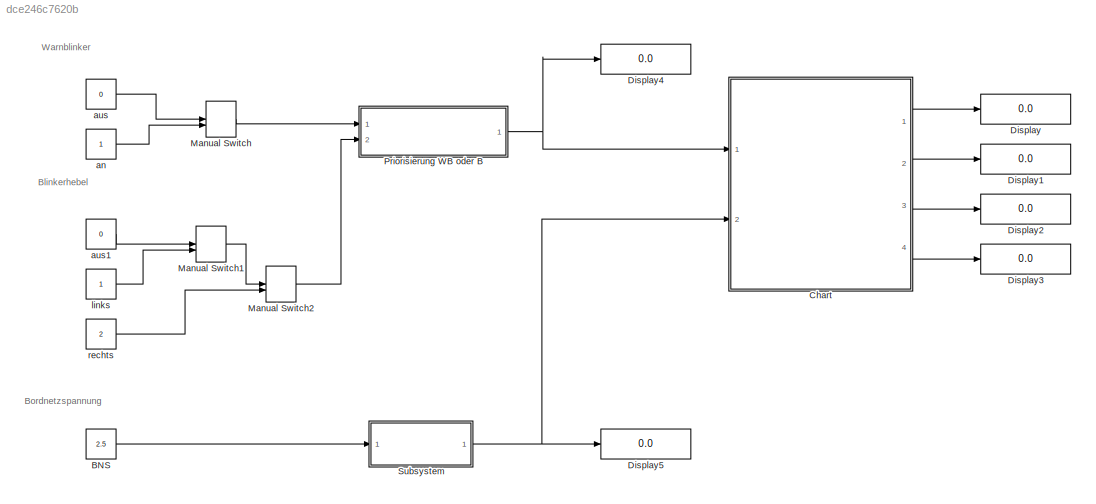
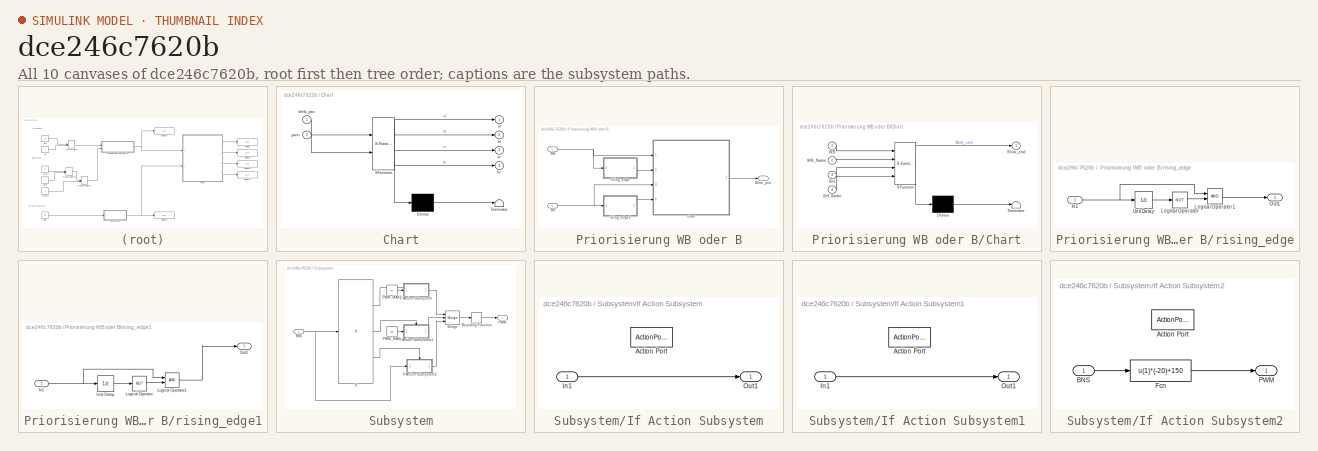
[diagram: thumbnail index - all 10 canvases of the model, root first then tree order]
MODEL slx_dce246c7620b
KIND model
CONFIG AbsTol = auto
CONFIG FixedStep = auto
CONFIG MaxStep = auto
CONFIG MinStep = auto
CONFIG RelTol = 1e-3
CONFIG SampleTimeConstraint = Unconstrained
CONFIG Solver = FixedStepAuto
CONFIG SolverMode = Auto
CONFIG SolverName = FixedStepAuto
CONFIG StartTime = 0.0
CONFIG StopTime = inf
BLOCK [Constant] BNS
  Value = 2.5
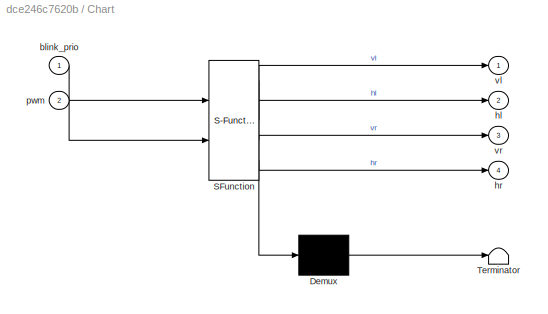
BLOCK [SubSystem] Chart
  ErrorFcn = Stateflow.Translate.translate
  PermitHierarchicalResolution = ExplicitOnly
  Ports = [2, 4]
  RequestExecContextInheritance = off
  SFBlockType = Chart
  TreatAsAtomicUnit = on
  Variant = off
BLOCK [Demux] Chart/ Demux 
  Outputs = 1
  Ports = [1, 1]
BLOCK [S-Function] Chart/ SFunction 
  EnableBusSupport = on
  FunctionName = sf_sfun
  PortCounts = [2 5]
  Ports = [2, 5]
  SFunctionDeploymentMode = off
  Tag = Stateflow S-Function Blinker_steuerung_1 1
BLOCK [Terminator] Chart/ Terminator 
BLOCK [Inport] Chart/blink_prio
  IconDisplay = Port number
BLOCK [Outport] Chart/hl
  IconDisplay = Port number
  Port = 2
BLOCK [Outport] Chart/hr
  IconDisplay = Port number
  Port = 4
BLOCK [Inport] Chart/pwm
  IconDisplay = Port number
  Port = 2
BLOCK [Outport] Chart/vl
  IconDisplay = Port number
BLOCK [Outport] Chart/vr
  IconDisplay = Port number
  Port = 3
BLOCK [Display] Display
  Decimation = 1
  Ports = [1]
BLOCK [Display] Display1
  Decimation = 1
  Ports = [1]
BLOCK [Display] Display2
  Decimation = 1
  Ports = [1]
BLOCK [Display] Display3
  Decimation = 1
  Ports = [1]
BLOCK [Display] Display4
  Decimation = 1
  Ports = [1]
BLOCK [Display] Display5
  Decimation = 1
  Ports = [1]
BLOCK [ManualSwitch] Manual Switch
BLOCK [ManualSwitch] Manual Switch1
BLOCK [ManualSwitch] Manual Switch2
BLOCK [SubSystem] Priorisierung WB oder B
  Ports = [2, 1]
  RequestExecContextInheritance = off
  Variant = off
BLOCK [Inport] Priorisierung WB oder B/BH
  IconDisplay = Port number
  Port = 2
BLOCK [Outport] Priorisierung WB oder B/Blink_prio 
  IconDisplay = Port number
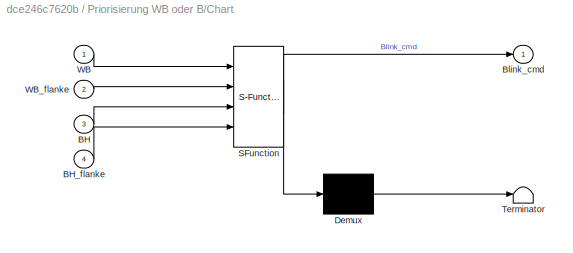
BLOCK [SubSystem] Priorisierung WB oder B/Chart
  ErrorFcn = Stateflow.Translate.translate
  PermitHierarchicalResolution = ExplicitOnly
  Ports = [4, 1]
  RequestExecContextInheritance = off
  SFBlockType = Chart
  TreatAsAtomicUnit = on
  Variant = off
BLOCK [Demux] Priorisierung WB oder B/Chart/ Demux 
  Outputs = 1
  Ports = [1, 1]
BLOCK [S-Function] Priorisierung WB oder B/Chart/ SFunction 
  EnableBusSupport = on
  FunctionName = sf_sfun
  PortCounts = [4 2]
  Ports = [4, 2]
  SFunctionDeploymentMode = off
  Tag = Stateflow S-Function Blinker_steuerung_1 3
BLOCK [Terminator] Priorisierung WB oder B/Chart/ Terminator 
BLOCK [Inport] Priorisierung WB oder B/Chart/BH
  IconDisplay = Port number
  Port = 3
BLOCK [Inport] Priorisierung WB oder B/Chart/BH_flanke
  IconDisplay = Port number
  Port = 4
BLOCK [Outport] Priorisierung WB oder B/Chart/Blink_cmd
  IconDisplay = Port number
BLOCK [Inport] Priorisierung WB oder B/Chart/WB
  IconDisplay = Port number
BLOCK [Inport] Priorisierung WB oder B/Chart/WB_flanke
  IconDisplay = Port number
  Port = 2
BLOCK [Inport] Priorisierung WB oder B/WB
  IconDisplay = Port number
BLOCK [SubSystem] Priorisierung WB oder B/rising_edge
  Ports = [1, 1]
  RequestExecContextInheritance = off
  Variant = off
BLOCK [Inport] Priorisierung WB oder B/rising_edge/In1
  IconDisplay = Port number
BLOCK [Logic] Priorisierung WB oder B/rising_edge/Logical Operator
  AllPortsSameDT = off
  Operator = NOT
  OutDataTypeStr = boolean
  Ports = [1, 1]
BLOCK [Logic] Priorisierung WB oder B/rising_edge/Logical Operator1
  AllPortsSameDT = off
  OutDataTypeStr = boolean
  Ports = [2, 1]
BLOCK [Outport] Priorisierung WB oder B/rising_edge/Out1
  IconDisplay = Port number
BLOCK [UnitDelay] Priorisierung WB oder B/rising_edge/Unit Delay
  InputProcessing = Elements as channels (sample based)
  SampleTime = -1
BLOCK [SubSystem] Priorisierung WB oder B/rising_edge1
  Ports = [1, 1]
  RequestExecContextInheritance = off
  Variant = off
BLOCK [Inport] Priorisierung WB oder B/rising_edge1/In1
  IconDisplay = Port number
BLOCK [Logic] Priorisierung WB oder B/rising_edge1/Logical Operator
  AllPortsSameDT = off
  Operator = NOT
  OutDataTypeStr = boolean
  Ports = [1, 1]
BLOCK [Logic] Priorisierung WB oder B/rising_edge1/Logical Operator1
  AllPortsSameDT = off
  OutDataTypeStr = boolean
  Ports = [2, 1]
BLOCK [Outport] Priorisierung WB oder B/rising_edge1/Out1
  IconDisplay = Port number
BLOCK [UnitDelay] Priorisierung WB oder B/rising_edge1/Unit Delay
  InputProcessing = Elements as channels (sample based)
  SampleTime = -1
BLOCK [SubSystem] Subsystem
  Ports = [1, 1]
  RequestExecContextInheritance = off
  Variant = off
BLOCK [Inport] Subsystem/BNS
  IconDisplay = Port number
BLOCK [If] Subsystem/If
  ElseIfExpressions = u1 <= 2.5
  IfExpression = u1 >= 5
  Ports = [1, 3]
BLOCK [SubSystem] Subsystem/If Action Subsystem
  Ports = [1, 1, 0, 0, 0, 0, 0, 1]
  RequestExecContextInheritance = off
  TreatAsAtomicUnit = on
  Variant = off
BLOCK [ActionPort] Subsystem/If Action Subsystem/Action Port
  ActionType = then
BLOCK [Inport] Subsystem/If Action Subsystem/In1
  IconDisplay = Port number
BLOCK [Outport] Subsystem/If Action Subsystem/Out1
  IconDisplay = Port number
BLOCK [SubSystem] Subsystem/If Action Subsystem1
  Ports = [1, 1, 0, 0, 0, 0, 0, 1]
  RequestExecContextInheritance = off
  TreatAsAtomicUnit = on
  Variant = off
BLOCK [ActionPort] Subsystem/If Action Subsystem1/Action Port
  ActionType = elseif
BLOCK [Inport] Subsystem/If Action Subsystem1/In1
  IconDisplay = Port number
BLOCK [Outport] Subsystem/If Action Subsystem1/Out1
  IconDisplay = Port number
BLOCK [SubSystem] Subsystem/If Action Subsystem2
  Ports = [1, 1, 0, 0, 0, 0, 0, 1]
  RequestExecContextInheritance = off
  TreatAsAtomicUnit = on
  Variant = off
BLOCK [ActionPort] Subsystem/If Action Subsystem2/Action Port
  ActionType = else
BLOCK [Inport] Subsystem/If Action Subsystem2/BNS 
  IconDisplay = Port number
BLOCK [Fcn] Subsystem/If Action Subsystem2/Fcn
  Expr = u(1)*(-20)+150
BLOCK [Outport] Subsystem/If Action Subsystem2/PWM
  IconDisplay = Port number
BLOCK [Merge] Subsystem/Merge
  Inputs = 3
  Ports = [3, 1]
BLOCK [Outport] Subsystem/PWM
  IconDisplay = Port number
BLOCK [Constant] Subsystem/PWM_MAX
  Value = 100
BLOCK [Constant] Subsystem/PWM_MAX1
  Value = 50
BLOCK [Rounding] Subsystem/Rounding Function
  Operator = round
BLOCK [Constant] an
BLOCK [Constant] aus
  Value = 0
BLOCK [Constant] aus1
  Value = 0
BLOCK [Constant] links
BLOCK [Constant] rechts
  Value = 2
ANNOTATION (root): Blinkerhebel
ANNOTATION (root): Bordnetzspannung
ANNOTATION (root): Warnblinker
LINE BNS:1 -> Subsystem:1
LINE Chart:1 -> Display:1
LINE Chart:2 -> Display1:1
LINE Chart:3 -> Display2:1
LINE Chart:4 -> Display3:1
LINE Manual Switch1:1 -> Manual Switch2:1
LINE Manual Switch2:1 -> Priorisierung WB oder B:2
LINE Manual Switch:1 -> Priorisierung WB oder B:1
NET Priorisierung WB oder B/BH:1 -> Priorisierung WB oder B/Chart:3, Priorisierung WB oder B/rising_edge1:1
LINE Priorisierung WB oder B/Chart:1 -> Priorisierung WB oder B/Blink_prio :1
NET Priorisierung WB oder B/WB:1 -> Priorisierung WB oder B/Chart:1, Priorisierung WB oder B/rising_edge:1
NET Priorisierung WB oder B/rising_edge/In1:1 -> Priorisierung WB oder B/rising_edge/Logical Operator1:1, Priorisierung WB oder B/rising_edge/Unit Delay:1
LINE Priorisierung WB oder B/rising_edge/Logical Operator1:1 -> Priorisierung WB oder B/rising_edge/Out1:1
LINE Priorisierung WB oder B/rising_edge/Logical Operator:1 -> Priorisierung WB oder B/rising_edge/Logical Operator1:2
LINE Priorisierung WB oder B/rising_edge/Unit Delay:1 -> Priorisierung WB oder B/rising_edge/Logical Operator:1
NET Priorisierung WB oder B/rising_edge1/In1:1 -> Priorisierung WB oder B/rising_edge1/Logical Operator1:1, Priorisierung WB oder B/rising_edge1/Unit Delay:1
LINE Priorisierung WB oder B/rising_edge1/Logical Operator1:1 -> Priorisierung WB oder B/rising_edge1/Out1:1
LINE Priorisierung WB oder B/rising_edge1/Logical Operator:1 -> Priorisierung WB oder B/rising_edge1/Logical Operator1:2
LINE Priorisierung WB oder B/rising_edge1/Unit Delay:1 -> Priorisierung WB oder B/rising_edge1/Logical Operator:1
LINE Priorisierung WB oder B/rising_edge1:1 -> Priorisierung WB oder B/Chart:4
LINE Priorisierung WB oder B/rising_edge:1 -> Priorisierung WB oder B/Chart:2
NET Priorisierung WB oder B:1 -> Chart:1, Display4:1
NET Subsystem/BNS:1 -> Subsystem/If Action Subsystem2:1, Subsystem/If:1
LINE Subsystem/If Action Subsystem/In1:1 -> Subsystem/If Action Subsystem/Out1:1
LINE Subsystem/If Action Subsystem1/In1:1 -> Subsystem/If Action Subsystem1/Out1:1
LINE Subsystem/If Action Subsystem1:1 -> Subsystem/Merge:2
LINE Subsystem/If Action Subsystem2/BNS :1 -> Subsystem/If Action Subsystem2/Fcn:1
LINE Subsystem/If Action Subsystem2/Fcn:1 -> Subsystem/If Action Subsystem2/PWM:1
LINE Subsystem/If Action Subsystem2:1 -> Subsystem/Merge:3
LINE Subsystem/If Action Subsystem:1 -> Subsystem/Merge:1
LINE Subsystem/If:1 -> Subsystem/If Action Subsystem:ifaction
LINE Subsystem/If:2 -> Subsystem/If Action Subsystem1:ifaction
LINE Subsystem/If:3 -> Subsystem/If Action Subsystem2:ifaction
LINE Subsystem/Merge:1 -> Subsystem/Rounding Function:1
LINE Subsystem/PWM_MAX1:1 -> Subsystem/If Action Subsystem:1
LINE Subsystem/PWM_MAX:1 -> Subsystem/If Action Subsystem1:1
LINE Subsystem/Rounding Function:1 -> Subsystem/PWM:1
NET Subsystem:1 -> Chart:2, Display5:1
LINE an:1 -> Manual Switch:2
LINE aus1:1 -> Manual Switch1:1
LINE aus:1 -> Manual Switch:1
LINE links:1 -> Manual Switch1:2
LINE rechts:1 -> Manual Switch2:2
note: NET lines group one-source signal fan-out (src -> all destinations, sorted); 1:1 wires keep LINE
CHART Chart states=1 transitions=6
  STATE_LABEL 'state/'
CHART Priorisierung WB oder B/Chart states=2 transitions=13
  STATE_LABEL 'RB_hat_Prio/'
  STATE_LABEL 'WB_hat_Prio/'
